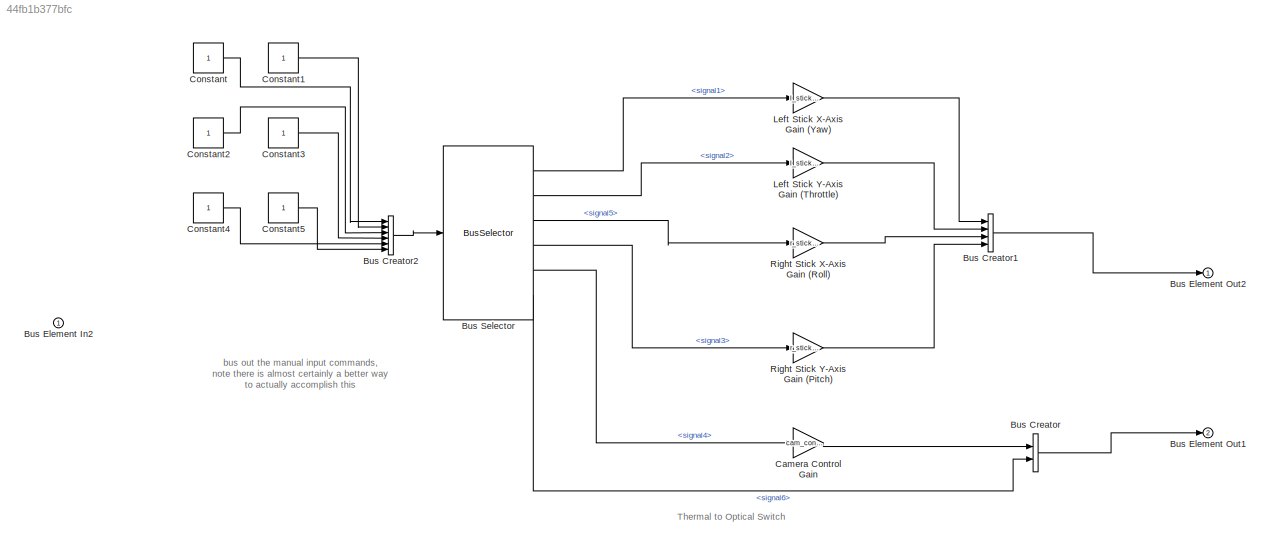
MODEL slx_44fb1b377bfc
KIND model
CONFIG AbsTol = auto
CONFIG EnableMultiTasking = off
CONFIG FixedStep = auto
CONFIG MaxStep = auto
CONFIG MinStep = auto
CONFIG RelTol = 1e-3
CONFIG SampleTimeConstraint = Unconstrained
CONFIG SolverName = VariableStepAuto
CONFIG StartTime = 0.0
CONFIG StopTime = 10.0
WORKSPACE source: mxarray member
WORKSPACE cam_control_gain = 1
WORKSPACE l_stick_x_gain = 1
WORKSPACE l_stick_y_gain = 1
WORKSPACE r_stick_x_gain = 1
WORKSPACE r_stick_y_gain = 1
BLOCK [BusCreator] Bus Creator
  DisplayOption = bar
  InheritFromInputs = on
  Inputs = 2
  Ports = [2, 1]
BLOCK [BusCreator] Bus Creator1
  DisplayOption = bar
  InheritFromInputs = on
  Inputs = 4
  Ports = [4, 1]
BLOCK [BusCreator] Bus Creator2
  DisplayOption = bar
  InheritFromInputs = on
  Inputs = 6
  Ports = [6, 1]
BLOCK [Inport] Bus Element In2
BLOCK [Outport] Bus Element Out1
  Port = 2
BLOCK [Outport] Bus Element Out2
BLOCK [BusSelector] Bus Selector
  OutputSignals = signal1,signal2,signal5,signal3,signal4,signal6
  Ports = [1, 6]
BLOCK [Gain] Camera Control Gain
  Gain = cam_control_gain
BLOCK [Constant] Constant
BLOCK [Constant] Constant1
BLOCK [Constant] Constant2
BLOCK [Constant] Constant3
BLOCK [Constant] Constant4
BLOCK [Constant] Constant5
BLOCK [Gain] Left Stick X-Axis Gain (Yaw)
  Gain = l_stick_x_gain
BLOCK [Gain] Left Stick Y-Axis Gain (Throttle)
  Gain = l_stick_y_gain
BLOCK [Gain] Right Stick X-Axis Gain (Roll)
  Gain = r_stick_x_gain
BLOCK [Gain] Right Stick Y-Axis Gain (Pitch)
  Gain = r_stick_y_gain
ANNOTATION (root): Thermal to Optical Switch
ANNOTATION (root): bus out the manual input commands, note there is almost certainly a better way to actually accomplish this
LINE Bus Creator1:1 -> Bus Element Out2:1
LINE Bus Creator2:1 -> Bus Selector:1
LINE Bus Creator:1 -> Bus Element Out1:1
LINE Bus Selector:1 -> Left Stick X-Axis Gain (Yaw):1
LINE Bus Selector:2 -> Left Stick Y-Axis Gain (Throttle):1
LINE Bus Selector:3 -> Right Stick X-Axis Gain (Roll):1
LINE Bus Selector:4 -> Right Stick Y-Axis Gain (Pitch):1
LINE Bus Selector:5 -> Camera Control Gain:1
LINE Bus Selector:6 -> Bus Creator:2
LINE Camera Control Gain:1 -> Bus Creator:1
LINE Constant1:1 -> Bus Creator2:2
LINE Constant2:1 -> Bus Creator2:3
LINE Constant3:1 -> Bus Creator2:4
LINE Constant4:1 -> Bus Creator2:5
LINE Constant5:1 -> Bus Creator2:6
LINE Constant:1 -> Bus Creator2:1
LINE Left Stick X-Axis Gain (Yaw):1 -> Bus Creator1:1
LINE Left Stick Y-Axis Gain (Throttle):1 -> Bus Creator1:2
LINE Right Stick X-Axis Gain (Roll):1 -> Bus Creator1:3
LINE Right Stick Y-Axis Gain (Pitch):1 -> Bus Creator1:4
